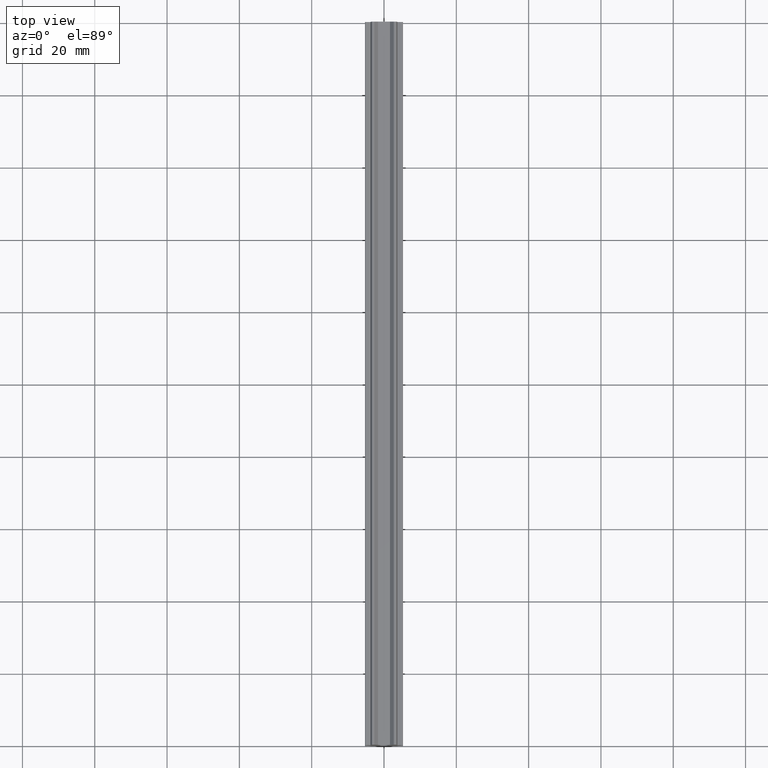
[diagram: clean part render]
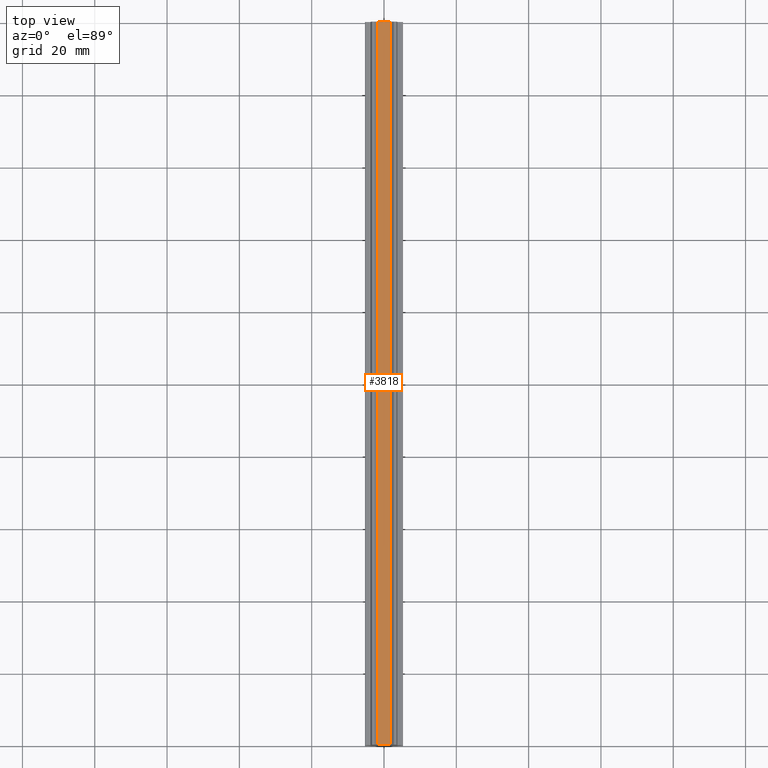
[diagram: same view with one face highlighted and labeled with its STEP entity id]
A machine part, top view. The second image highlights one B-rep face of the part: STEP entity #3818.
In plain terms, the highlighted face is a freeform B-spline surface patch.
Its self-contained STEP definition (entity closure, byte-faithful):
#51=CARTESIAN_POINT('',(1.650000000000000,0.0,0.0));
#52=VERTEX_POINT('',#51);
#58=CARTESIAN_POINT('',(-1.650000000000000,0.0,0.0));
#59=VERTEX_POINT('',#58);
#60=CARTESIAN_POINT('',(1.650000000000000,0.0,0.0));
#61=CARTESIAN_POINT('',(-1.650000000000000,0.0,0.0));
#62=QUASI_UNIFORM_CURVE('',1,(#60,#61),.UNSPECIFIED.,.F.,.U.);
#63=EDGE_CURVE('',#52,#59,#62,.T.);
#1057=CARTESIAN_POINT('',(1.650000000000000,200.0,0.0));
#1058=VERTEX_POINT('',#1057);
#1891=CARTESIAN_POINT('',(-1.650000000000000,200.0,0.0));
#1892=VERTEX_POINT('',#1891);
#1898=CARTESIAN_POINT('',(1.650000000000000,200.0,0.0));
#1899=CARTESIAN_POINT('',(-1.650000000000000,200.0,0.0));
#1900=QUASI_UNIFORM_CURVE('',1,(#1898,#1899),.UNSPECIFIED.,.F.,.U.);
#1901=EDGE_CURVE('',#1058,#1892,#1900,.T.);
#3793=CARTESIAN_POINT('',(-1.650000000000000,200.0,0.0));
#3794=CARTESIAN_POINT('',(-1.650000000000000,0.0,0.0));
#3795=QUASI_UNIFORM_CURVE('',1,(#3793,#3794),.UNSPECIFIED.,.F.,.U.);
#3796=EDGE_CURVE('',#1892,#59,#3795,.T.);
#3803=CARTESIAN_POINT('',(-1.814834993603960,-9.989999612361194,0.0));
#3804=CARTESIAN_POINT('',(1.814835082116857,-9.989999612361194,0.0));
#3805=CARTESIAN_POINT('',(-1.814834993603960,209.990004976779200,0.0));
#3806=CARTESIAN_POINT('',(1.814835082116857,209.990004976779200,0.0));
#3807=B_SPLINE_SURFACE_WITH_KNOTS('',1,1,((#3803,#3805),(#3804,#3806)),.UNSPECIFIED.,.F.,.F.,.U.,(2,2),(2,2),(0.0,3.629670075720817),(0.0,219.980004589140410),.UNSPECIFIED.);
#3808=ORIENTED_EDGE('',*,*,#63,.F.);
#3809=CARTESIAN_POINT('',(1.650000000000000,200.0,0.0));
#3810=CARTESIAN_POINT('',(1.650000000000000,0.0,0.0));
#3811=QUASI_UNIFORM_CURVE('',1,(#3809,#3810),.UNSPECIFIED.,.F.,.U.);
#3812=EDGE_CURVE('',#1058,#52,#3811,.T.);
#3813=ORIENTED_EDGE('',*,*,#3812,.F.);
#3814=ORIENTED_EDGE('',*,*,#1901,.T.);
#3815=ORIENTED_EDGE('',*,*,#3796,.T.);
#3816=EDGE_LOOP('',(#3808,#3813,#3814,#3815));
#3817=FACE_OUTER_BOUND('',#3816,.T.);
#3818=ADVANCED_FACE('',(#3817),#3807,.T.);